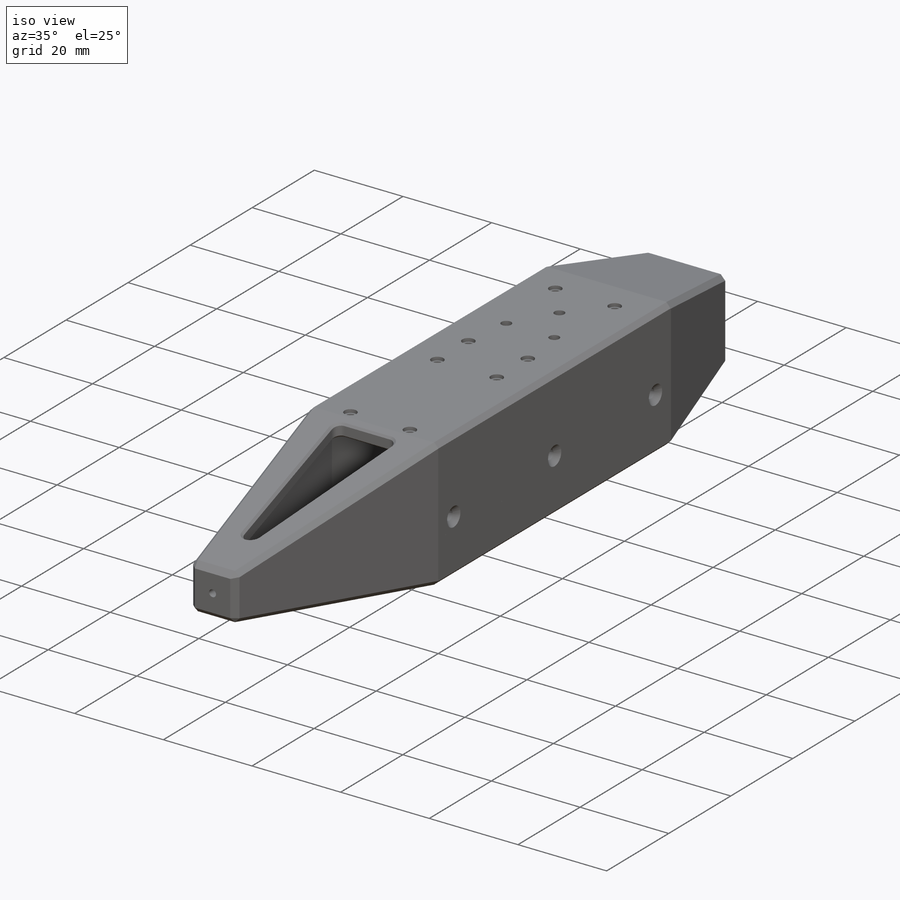
[diagram: iso view]
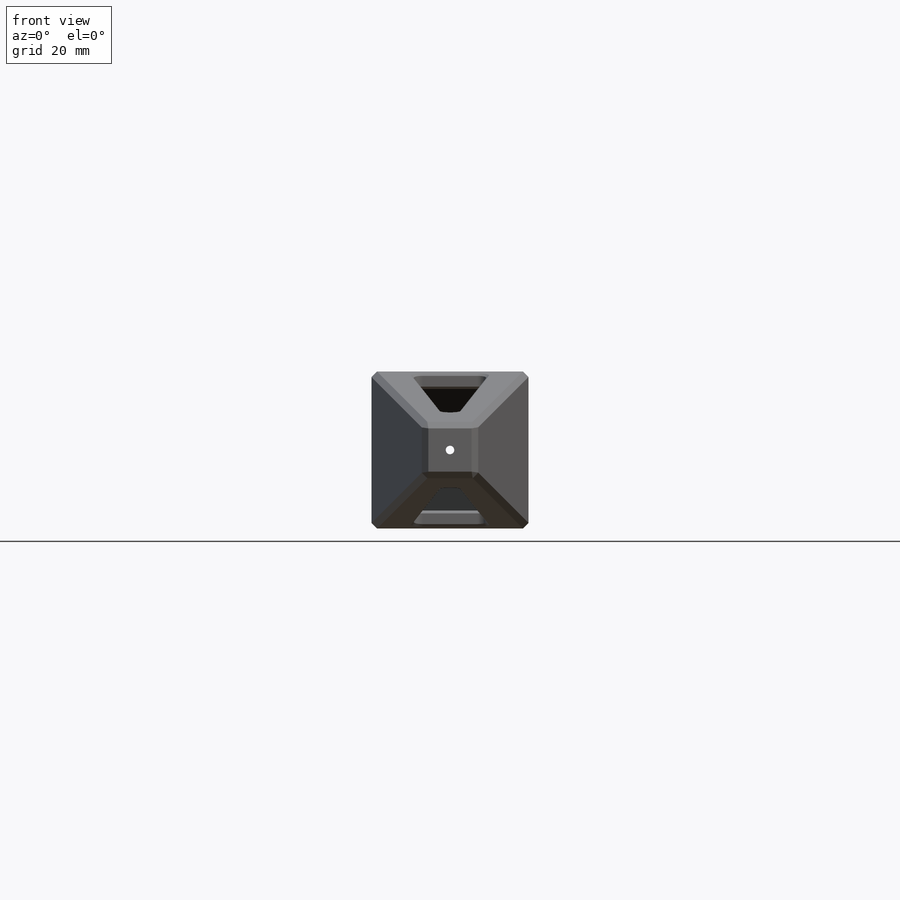
[diagram: front view]
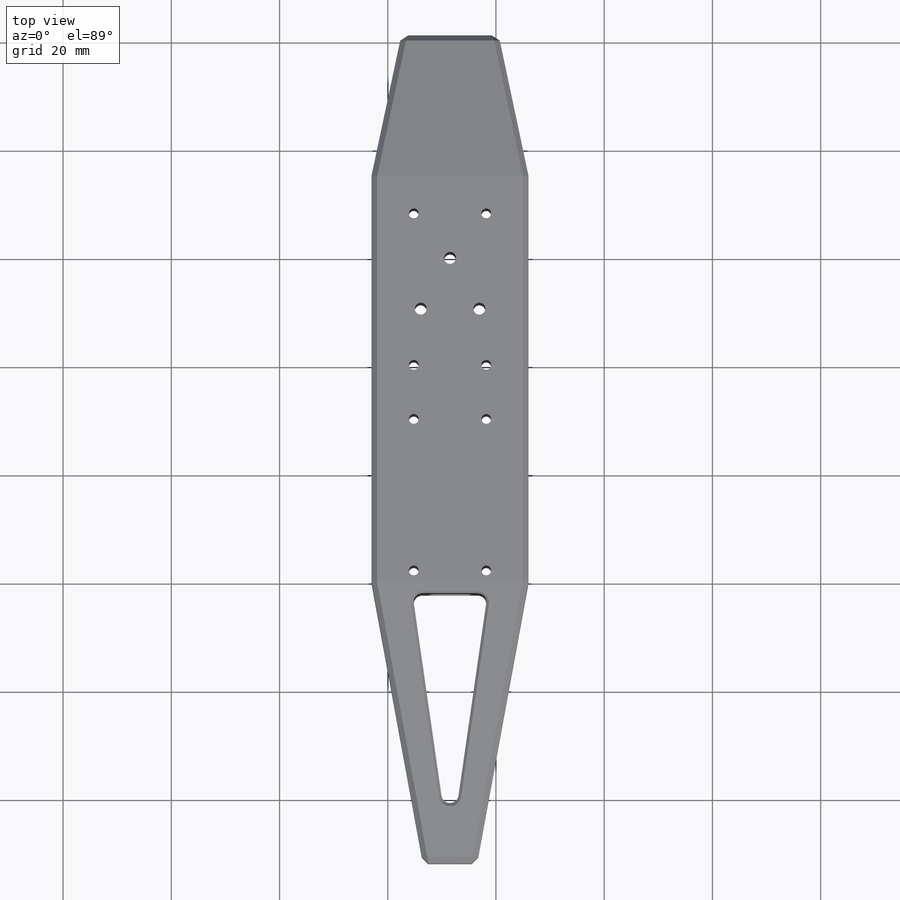
[diagram: top view]
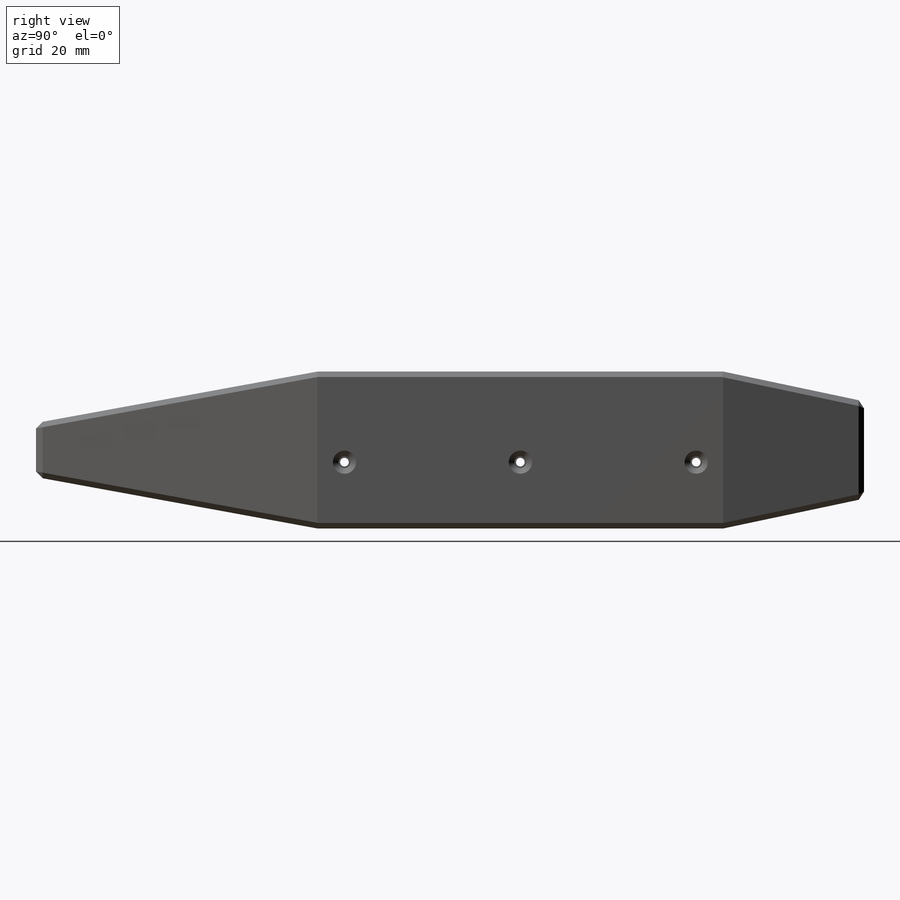
[diagram: right view]
SOLIDWORKS PART (.sldprt)
format: sldprt  version: not decoded by parser v0  size: 1,270,784 bytes
history: native  units: mm
features: sketch x29, plane x9, cut_extrude x6, hole x5, mirror x3, chamfer x3, surface_op x2, material x1, extrude x1 (+13 scaffold rows collapsed)
feature tree (72):
  scaffold x13  (default folders/planes/origin — collapsed)
  material  "6061 Alloy"
  plane  "Plane5"  Offset=7mm
  sketch  "Sketch1"  dims[c1.D1=3.0mm c1.D2=3.0mm c1.D3=5.0mm c2.D1=3.0mm c2.D2=3.0mm]
  extrude  "Boss-Extrude1"  Depth=5mm
  sketch  "Sketch4"  dims[D1=10.0mm]
  sketch  "Sketch6"
  plane  "Plane1"  Offset=7mm
  sketch  "Sketch7"  dims[D1=6.0mm]
  plane  "Plane2"
  sketch  "Sketch8"
  sketch  "Sketch11"  dims[D1=0.0mm]
  sketch  "Sketch12"  dims[D1=0.0mm]
  plane  "Plane3"  Offset=22mm
  sketch  "Sketch13"  dims[D1=14.0mm]
  plane  "Plane4"  Offset=4mm
  sketch  "Sketch14"  dims[D1=18.0mm]
  sketch  "Loft2"
  plane  "Plane6"
  cut_extrude  "Cut-Loft4"  [1 undecoded]
  hole  "CBORE for M1.6 Pan Head Screw1"  Diameter=1.8mm Depth=3mm
  sketch  "Sketch16"
  sketch  "Sketch15"  dims[hole-wizard template sketch: 41 standard entries collapsed; hole parameters kept: c12.Thru Hole Dia.=1.8mm c12.Thru Hole Depth=3.0mm c12.C'Bore Dia.=2.7mm c12.C'Bore Depth=0.75mm]
  hole  "CBORE for M1.6 Pan Head Screw2"  Diameter=1.8mm Depth=3mm
  sketch  "Sketch19"
  sketch  "Sketch17"  dims[hole-wizard template sketch: 41 standard entries collapsed; hole parameters kept: c12.Thru Hole Dia.=1.8mm c12.Thru Hole Depth=3.0mm c12.C'Bore Dia.=2.7mm c12.C'Bore Depth=0.75mm]
  hole  "CSK for M2 Countersunk Flat Head Screw1"  Diameter=2.2mm Depth=3.000025mm
  sketch  "Sketch21"
  sketch  "Sketch20"  dims[hole-wizard template sketch: 55 standard entries collapsed; hole parameters kept: c17.Thru Hole Depth=~3.000025mm c17.Near C'Sink Dia.=4.8mm c17.D4=~3.666174mm c17.Near C'Sink Angle=90.0deg]
  plane  "Plane Center"
  plane  "Plane cutout"
  mirror  "Mirror1"
  sketch  "Sketch22"  dims[c1.D1=~2.333499mm c1.D3=1.0mm c2.D1=2.0mm c2.D2=4.0mm]
  cut_extrude  "Cut-Extrude1"  [1 undecoded]
  sketch  "Sketch24"  dims[D1=0.05mm]
  cut_extrude  "Cut-Extrude2"  [1 undecoded]
  sketch  "Sketch23"  dims[c1.D1=2.5mm c1.D2=5.0mm c2.D1=2.5mm c2.D2=2.5mm]
  surface_op  "Surface-Extrude1"
  plane  "Plane7"
  sketch  "Sketch26"  dims[D2=50.0mm D3=8.0mm D4=~29.000541mm D1=0.0mm]
  sketch  "Sketch27"
  cut_extrude  "Surface-Extrude2"  [1 undecoded]
  sketch  "Sketch28"
  surface_op  "Surface-Plane3"
  sketch  "Sketch29"  dims[D1=5.0mm D2=5.0mm D3=5.0mm]
  cut_extrude  "Surface-Extrude3"  [1 undecoded]
  sketch  "Sketch41"  dims[c1.D1=5.0mm c1.D2=2.75mm c1.D3=5.0mm c1.D4=65.0mm c2.D1=5.0mm c2.D2=5.0mm c2.D3=2.75mm]
  hole  "CSK for M2 Countersunk Flat Head Screw3"  Diameter=2.2mm Depth=3mm
  sketch  "Sketch47"
  sketch  "Sketch46"  dims[hole-wizard template sketch: 39 standard entries collapsed; hole parameters kept: c13.Hole Dia.=2.2mm c13.Hole Depth=3.0mm c13.Near C'Sink Dia.=4.3mm c13.D4=~33.297463mm c13.Near C'Sink Angle=90.0deg c14.D5=~14.816244mm c14.Drill Angle=180.0deg]
  hole  "Tap Drill for M2x0.4 Tap2"  Diameter=1.6mm Depth=2.001mm
  sketch  "Sketch49"
  sketch  "Sketch48"  dims[hole-wizard template sketch: 60 standard entries collapsed; hole parameters kept: c18.Thru Hole Depth=2.001mm]
  mirror  "Mirror3"
  sketch  "Sketch50"  dims[c1.D3=1.5875mm c1.D1=0.0mm c1.D2=2.0mm c2.D1=0.0mm c2.D2=2.2mm]
  cut_extrude  "Cut-Extrude3"  [1 undecoded]
  mirror  "Mirror4"
  chamfer  "Chamfer1"  Distance=1mm Angle=45deg
  chamfer  "Chamfer2"  Distance=0.5mm Angle=45deg
  chamfer  "Chamfer3"  Distance=0.3mm Angle=45deg
decode coverage: 28 of 49 modeling features carry decoded parameters
note: ~ marks probable driven/reference dimensions
note: 6 parameter values undecoded
summary: no parameter record found for 6 features; Diameter pulled from absorbed wizard sketch
note: suppression state not decoded; provenance and decode notes live in map.json
